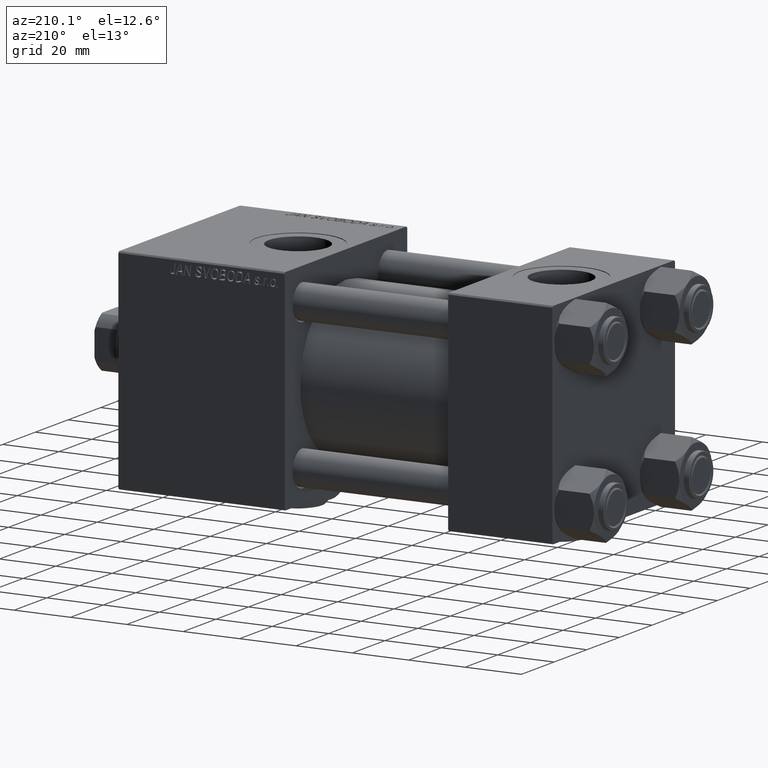
[diagram: clean part render]
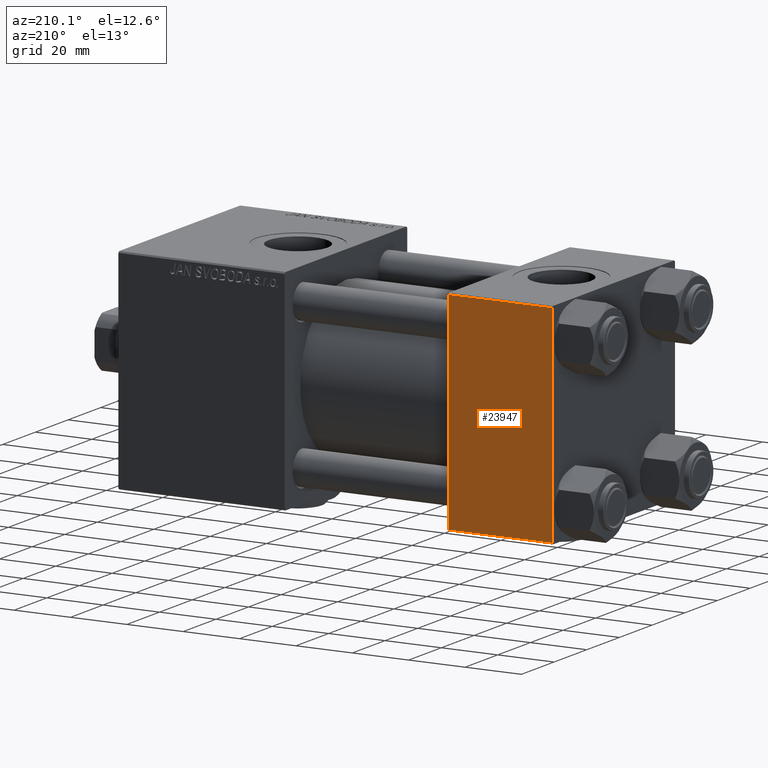
[diagram: same view with one face highlighted and labeled with its STEP entity id]
A machine part, auxiliary view. The second image highlights one B-rep face of the part: STEP entity #23947.
In plain terms, the highlighted planar face has unit normal (0, 1, 0).
Its self-contained STEP definition (entity closure, byte-faithful):
#4335 = PLANE ( 'NONE',  #22032 ) ;
#4408 = LINE ( 'NONE', #48789, #38926 ) ;
#5335 = VERTEX_POINT ( 'NONE', #14232 ) ;
#6638 = DIRECTION ( 'NONE',  ( 0.000000000000000000, 0.000000000000000000, -1.000000000000000000 ) ) ;
#7765 = VECTOR ( 'NONE', #46262, 1000.000000000000000 ) ;
#11890 = CARTESIAN_POINT ( 'NONE',  ( 37.00000000000000000, 37.49999999999999289, 37.50000000000000000 ) ) ;
#12308 = DIRECTION ( 'NONE',  ( 1.000000000000000000, 0.000000000000000000, 0.000000000000000000 ) ) ;
#14004 = CARTESIAN_POINT ( 'NONE',  ( 37.00000000000000000, 37.49999999999999289, -36.99999999999998579 ) ) ;
#14232 = CARTESIAN_POINT ( 'NONE',  ( 0.000000000000000000, 37.49999999999999289, 37.00000000000000000 ) ) ;
#15617 = CARTESIAN_POINT ( 'NONE',  ( 37.00000000000000000, 37.49999999999999289, 37.00000000000000000 ) ) ;
#16049 = ORIENTED_EDGE ( 'NONE', *, *, #39407, .F. ) ;
#18297 = VERTEX_POINT ( 'NONE', #26882 ) ;
#18528 = ORIENTED_EDGE ( 'NONE', *, *, #50714, .T. ) ;
#22032 = AXIS2_PLACEMENT_3D ( 'NONE', #47418, #39742, #36026 ) ;
#22407 = CARTESIAN_POINT ( 'NONE',  ( 37.00000000000000000, 37.49999999999999289, -36.99999999999998579 ) ) ;
#23947 = ADVANCED_FACE ( 'NONE', ( #40529 ), #4335, .T. ) ;
#24938 = VECTOR ( 'NONE', #31464, 1000.000000000000000 ) ;
#25059 = VERTEX_POINT ( 'NONE', #15617 ) ;
#26882 = CARTESIAN_POINT ( 'NONE',  ( 0.000000000000000000, 37.49999999999999289, -36.99999999999998579 ) ) ;
#29322 = EDGE_LOOP ( 'NONE', ( #18528, #31922, #16049, #51048 ) ) ;
#29351 = LINE ( 'NONE', #14004, #7765 ) ;
#31464 = DIRECTION ( 'NONE',  ( 0.000000000000000000, 0.000000000000000000, -1.000000000000000000 ) ) ;
#31922 = ORIENTED_EDGE ( 'NONE', *, *, #38495, .T. ) ;
#32781 = EDGE_CURVE ( 'NONE', #5335, #25059, #4408, .T. ) ;
#34154 = VERTEX_POINT ( 'NONE', #22407 ) ;
#35683 = LINE ( 'NONE', #11890, #24938 ) ;
#36026 = DIRECTION ( 'NONE',  ( 0.000000000000000000, -0.000000000000000000, 1.000000000000000000 ) ) ;
#36502 = VECTOR ( 'NONE', #6638, 1000.000000000000000 ) ;
#38495 = EDGE_CURVE ( 'NONE', #34154, #18297, #29351, .T. ) ;
#38926 = VECTOR ( 'NONE', #12308, 1000.000000000000000 ) ;
#39407 = EDGE_CURVE ( 'NONE', #5335, #18297, #46534, .T. ) ;
#39742 = DIRECTION ( 'NONE',  ( -0.000000000000000000, 1.000000000000000000, 0.000000000000000000 ) ) ;
#40529 = FACE_OUTER_BOUND ( 'NONE', #29322, .T. ) ;
#46262 = DIRECTION ( 'NONE',  ( -1.000000000000000000, 0.000000000000000000, 0.000000000000000000 ) ) ;
#46534 = LINE ( 'NONE', #52045, #36502 ) ;
#47418 = CARTESIAN_POINT ( 'NONE',  ( 37.00000000000000000, 37.49999999999999289, 37.50000000000000000 ) ) ;
#48789 = CARTESIAN_POINT ( 'NONE',  ( 37.00000000000000000, 37.49999999999999289, 37.00000000000000000 ) ) ;
#50714 = EDGE_CURVE ( 'NONE', #25059, #34154, #35683, .T. ) ;
#51048 = ORIENTED_EDGE ( 'NONE', *, *, #32781, .T. ) ;
#52045 = CARTESIAN_POINT ( 'NONE',  ( 0.000000000000000000, 37.49999999999999289, 37.50000000000000000 ) ) ;